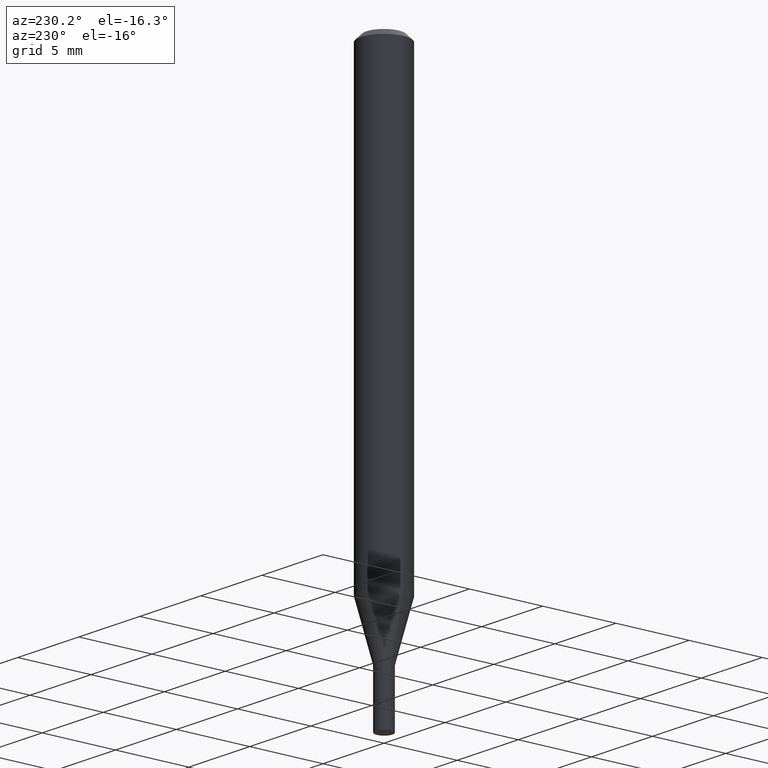
[diagram: clean part render]
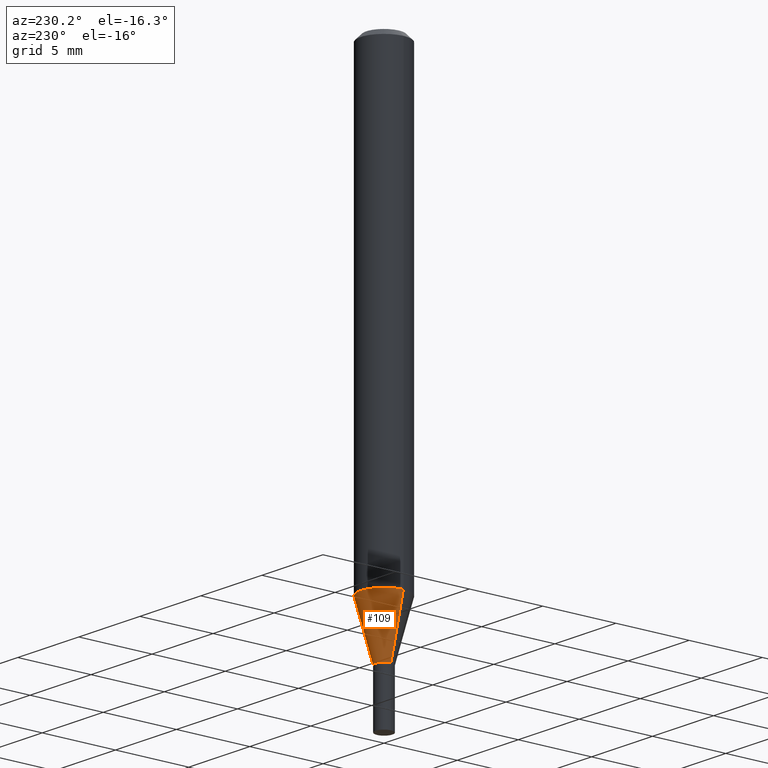
[diagram: same view with one face highlighted and labeled with its STEP entity id]
A machine part, auxiliary view. The second image highlights one B-rep face of the part: STEP entity #109.
In plain terms, the highlighted conical surface has half-angle 15 deg.
Its self-contained STEP definition (entity closure, byte-faithful):
#4 = CARTESIAN_POINT ( 'NONE',  ( 3.313610232380860851E-29, -4.730957214132463209E-15, -1.355000000000000204 ) ) ;
#30 = EDGE_CURVE ( 'NONE', #370, #259, #122, .T. ) ;
#34 = AXIS2_PLACEMENT_3D ( 'NONE', #4, #429, #397 ) ;
#48 = LINE ( 'NONE', #443, #138 ) ;
#52 = DIRECTION ( 'NONE',  ( -2.445468806185136597E-29, 3.491481338843145583E-15, 1.000000000000000000 ) ) ;
#72 = FACE_OUTER_BOUND ( 'NONE', #113, .T. ) ;
#74 = VERTEX_POINT ( 'NONE', #236 ) ;
#90 = CARTESIAN_POINT ( 'NONE',  ( 2.948545679060551070E-29, -4.209741784122813615E-15, -1.205717967697245152 ) ) ;
#91 = CIRCLE ( 'NONE', #352, 0.02249999999999991937 ) ;
#99 = VECTOR ( 'NONE', #127, 39.37007874015747433 ) ;
#109 = ADVANCED_FACE ( 'NONE', ( #72 ), #286, .T. ) ;
#113 = EDGE_LOOP ( 'NONE', ( #162, #358, #403, #437 ) ) ;
#122 = CIRCLE ( 'NONE', #186, 0.06250000000000000000 ) ;
#125 = CARTESIAN_POINT ( 'NONE',  ( 0.02249999999999991937, -4.888073874380403263E-15, -1.355000000000000204 ) ) ;
#127 = DIRECTION ( 'NONE',  ( 0.2588190451025213501, 1.565188264969621968E-15, 0.9659258262890682012 ) ) ;
#129 = DIRECTION ( 'NONE',  ( 1.000000000000000000, -6.982962677686249356E-15, 0.000000000000000000 ) ) ;
#138 = VECTOR ( 'NONE', #152, 39.37007874015747433 ) ;
#152 = DIRECTION ( 'NONE',  ( -0.2588190451025213501, 5.211531920934551042E-15, 0.9659258262890682012 ) ) ;
#162 = ORIENTED_EDGE ( 'NONE', *, *, #330, .T. ) ;
#186 = AXIS2_PLACEMENT_3D ( 'NONE', #90, #52, #279 ) ;
#190 = DIRECTION ( 'NONE',  ( -2.445468806185136597E-29, 3.491481338843145583E-15, 1.000000000000000000 ) ) ;
#200 = CARTESIAN_POINT ( 'NONE',  ( -0.06250000000000001388, -3.765652574272750998E-15, -1.205717967697245152 ) ) ;
#236 = CARTESIAN_POINT ( 'NONE',  ( -0.02249999999999991937, -4.168368836429595565E-15, -1.355000000000000204 ) ) ;
#257 = VERTEX_POINT ( 'NONE', #341 ) ;
#259 = VERTEX_POINT ( 'NONE', #200 ) ;
#279 = DIRECTION ( 'NONE',  ( 1.000000000000000000, -6.982962677686270655E-15, 0.000000000000000000 ) ) ;
#286 = CONICAL_SURFACE ( 'NONE', #34, 0.02249999999999991937, 0.2617993877991500740 ) ;
#300 = EDGE_CURVE ( 'NONE', #257, #370, #408, .T. ) ;
#329 = CARTESIAN_POINT ( 'NONE',  ( 0.06250000000000001388, -4.646176951478205284E-15, -1.205717967697245152 ) ) ;
#330 = EDGE_CURVE ( 'NONE', #257, #74, #91, .T. ) ;
#333 = CARTESIAN_POINT ( 'NONE',  ( 3.313610232380860851E-29, -4.730957214132463209E-15, -1.355000000000000204 ) ) ;
#341 = CARTESIAN_POINT ( 'NONE',  ( 0.02249999999999991937, -4.888073874380403263E-15, -1.355000000000000204 ) ) ;
#352 = AXIS2_PLACEMENT_3D ( 'NONE', #333, #190, #129 ) ;
#358 = ORIENTED_EDGE ( 'NONE', *, *, #382, .T. ) ;
#370 = VERTEX_POINT ( 'NONE', #329 ) ;
#382 = EDGE_CURVE ( 'NONE', #74, #259, #48, .T. ) ;
#397 = DIRECTION ( 'NONE',  ( 1.000000000000000000, -6.982962677686249356E-15, 0.000000000000000000 ) ) ;
#403 = ORIENTED_EDGE ( 'NONE', *, *, #30, .F. ) ;
#408 = LINE ( 'NONE', #125, #99 ) ;
#429 = DIRECTION ( 'NONE',  ( -2.445468806185136597E-29, 3.491481338843145583E-15, 1.000000000000000000 ) ) ;
#437 = ORIENTED_EDGE ( 'NONE', *, *, #300, .F. ) ;
#443 = CARTESIAN_POINT ( 'NONE',  ( -0.02249999999999991937, -4.571085098586440920E-15, -1.355000000000000204 ) ) ;